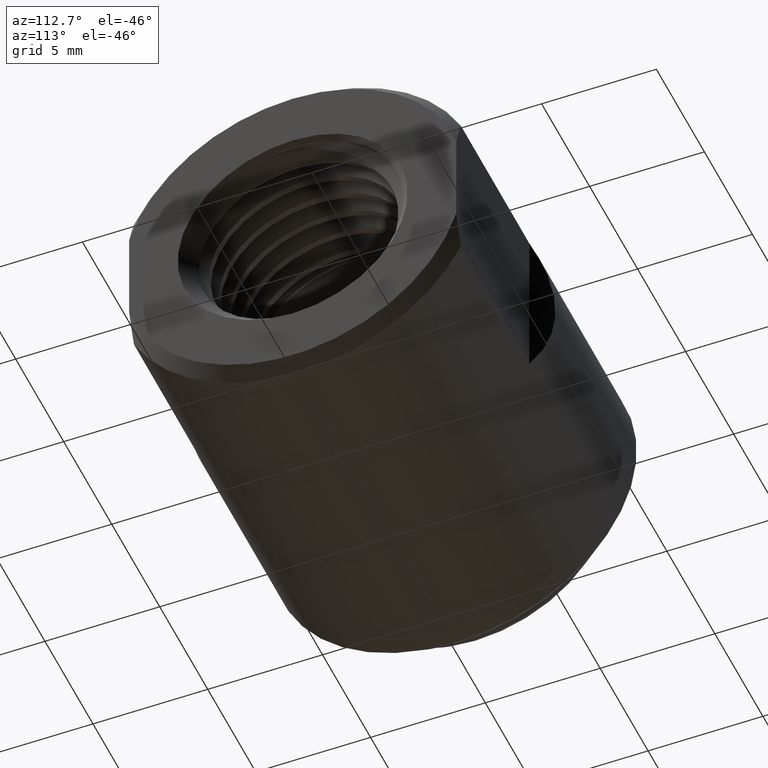
[diagram: clean part render]
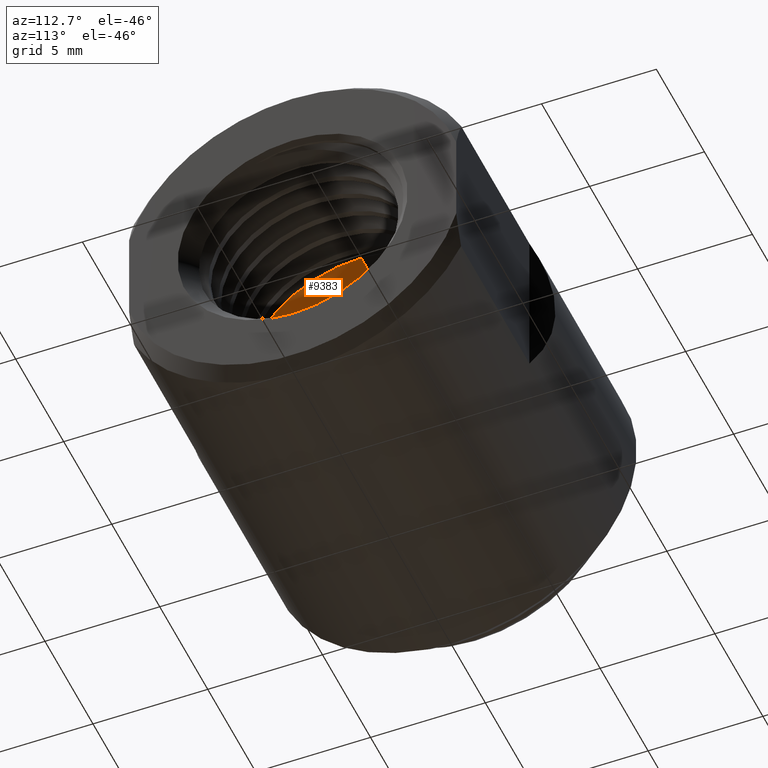
[diagram: same view with one face highlighted and labeled with its STEP entity id]
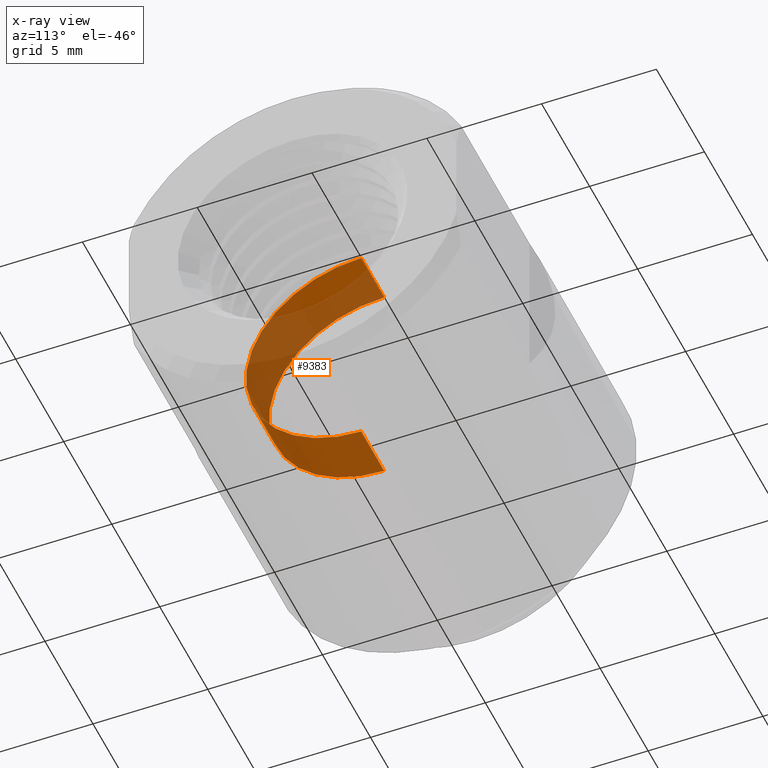
[diagram: x-ray of the same camera — body ghosted, the highlighted face saturated]
A machine part, auxiliary view. The second image highlights one B-rep face of the part: STEP entity #9383.
The next image is the same camera in x-ray: the body ghosted, the highlighted face saturated — about 84% of this face is hidden behind the body in this view.
In plain terms, the highlighted cylindrical surface (partial cylindrical patch) has radius 5.0165 mm, axis along (-1, -0, -0).
Its self-contained STEP definition (entity closure, byte-faithful):
#667 = VERTEX_POINT ( 'NONE', #11184 ) ;
#763 = CYLINDRICAL_SURFACE ( 'NONE', #10800, 0.1975000000000000921 ) ;
#823 = CARTESIAN_POINT ( 'NONE',  ( 0.3119999999999999996, 0.0000000000000000000, 0.0000000000000000000 ) ) ;
#1844 = DIRECTION ( 'NONE',  ( 0.0000000000000000000, 0.0000000000000000000, 1.000000000000000000 ) ) ;
#2431 = ORIENTED_EDGE ( 'NONE', *, *, #9488, .T. ) ;
#2832 = CARTESIAN_POINT ( 'NONE',  ( 0.0000000000000000000, 0.0000000000000000000, 0.1975000000000000921 ) ) ;
#3280 = LINE ( 'NONE', #6270, #9154 ) ;
#3417 = EDGE_CURVE ( 'NONE', #4232, #667, #11554, .T. ) ;
#3466 = AXIS2_PLACEMENT_3D ( 'NONE', #823, #4688, #1844 ) ;
#3560 = CARTESIAN_POINT ( 'NONE',  ( 0.0000000000000000000, 0.0000000000000000000, 0.0000000000000000000 ) ) ;
#3586 = VECTOR ( 'NONE', #10595, 39.37007874015748143 ) ;
#3651 = ORIENTED_EDGE ( 'NONE', *, *, #10718, .T. ) ;
#3685 = DIRECTION ( 'NONE',  ( 0.0000000000000000000, 0.0000000000000000000, 1.000000000000000000 ) ) ;
#4217 = ORIENTED_EDGE ( 'NONE', *, *, #8003, .F. ) ;
#4232 = VERTEX_POINT ( 'NONE', #10222 ) ;
#4688 = DIRECTION ( 'NONE',  ( -1.000000000000000000, -0.0000000000000000000, -0.0000000000000000000 ) ) ;
#5098 = DIRECTION ( 'NONE',  ( 0.0000000000000000000, 0.0000000000000000000, 1.000000000000000000 ) ) ;
#5204 = VERTEX_POINT ( 'NONE', #10468 ) ;
#5389 = VERTEX_POINT ( 'NONE', #7009 ) ;
#6270 = CARTESIAN_POINT ( 'NONE',  ( 0.0000000000000000000, 2.418677428316023392E-17, -0.1975000000000000921 ) ) ;
#6392 = CARTESIAN_POINT ( 'NONE',  ( 0.2179999999999999716, 0.0000000000000000000, 0.0000000000000000000 ) ) ;
#6937 = CIRCLE ( 'NONE', #8566, 0.1975000000000000921 ) ;
#7009 = CARTESIAN_POINT ( 'NONE',  ( 0.3119999999999999996, 2.418677428316023700E-17, -0.1975000000000000921 ) ) ;
#7615 = FACE_OUTER_BOUND ( 'NONE', #7808, .T. ) ;
#7808 = EDGE_LOOP ( 'NONE', ( #4217, #2431, #3651, #11415 ) ) ;
#8003 = EDGE_CURVE ( 'NONE', #5389, #4232, #11792, .T. ) ;
#8093 = DIRECTION ( 'NONE',  ( -1.000000000000000000, -0.0000000000000000000, -0.0000000000000000000 ) ) ;
#8246 = DIRECTION ( 'NONE',  ( -1.000000000000000000, -0.0000000000000000000, -0.0000000000000000000 ) ) ;
#8566 = AXIS2_PLACEMENT_3D ( 'NONE', #6392, #8093, #5098 ) ;
#9154 = VECTOR ( 'NONE', #8246, 39.37007874015748143 ) ;
#9383 = ADVANCED_FACE ( 'NONE', ( #7615 ), #763, .F. ) ;
#9488 = EDGE_CURVE ( 'NONE', #5389, #5204, #3280, .T. ) ;
#10222 = CARTESIAN_POINT ( 'NONE',  ( 0.3119999999999999996, 0.0000000000000000000, 0.1975000000000000921 ) ) ;
#10468 = CARTESIAN_POINT ( 'NONE',  ( 0.2179999999999999716, 2.418677428316023392E-17, -0.1975000000000000921 ) ) ;
#10595 = DIRECTION ( 'NONE',  ( -1.000000000000000000, -0.0000000000000000000, -0.0000000000000000000 ) ) ;
#10718 = EDGE_CURVE ( 'NONE', #5204, #667, #6937, .T. ) ;
#10800 = AXIS2_PLACEMENT_3D ( 'NONE', #3560, #12399, #3685 ) ;
#11184 = CARTESIAN_POINT ( 'NONE',  ( 0.2179999999999999716, 0.0000000000000000000, 0.1975000000000000921 ) ) ;
#11415 = ORIENTED_EDGE ( 'NONE', *, *, #3417, .F. ) ;
#11554 = LINE ( 'NONE', #2832, #3586 ) ;
#11792 = CIRCLE ( 'NONE', #3466, 0.1975000000000000921 ) ;
#12399 = DIRECTION ( 'NONE',  ( -1.000000000000000000, -0.0000000000000000000, -0.0000000000000000000 ) ) ;